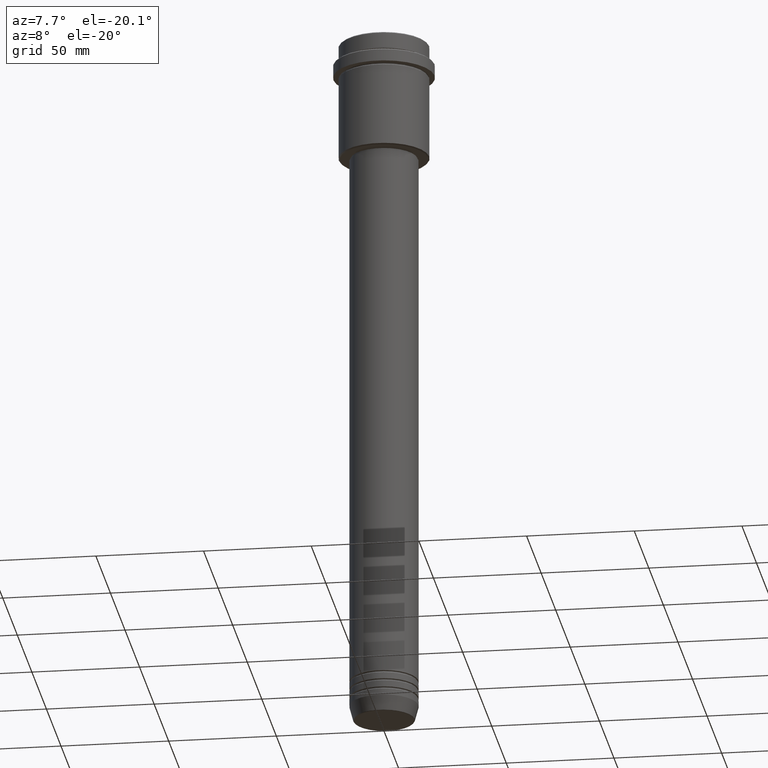
[diagram: clean part render]
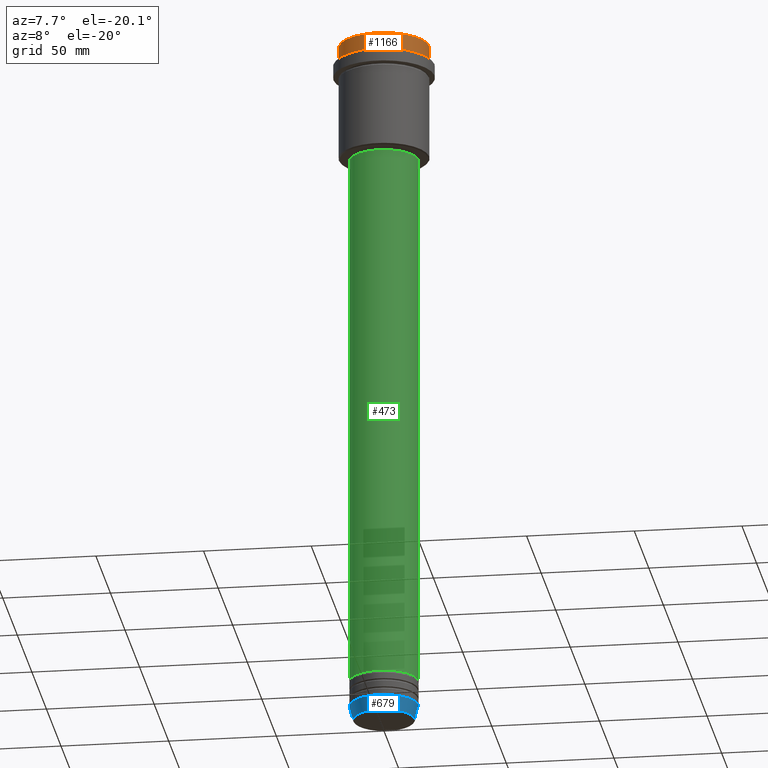
[diagram: same view with three faces highlighted in distinct colors, each labeled with its STEP entity id]
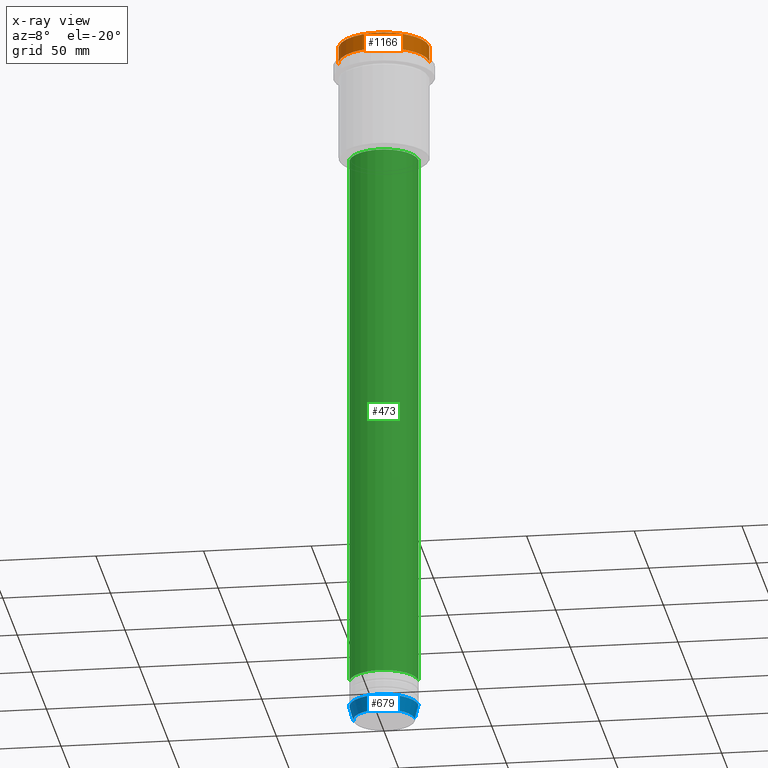
[diagram: x-ray of the same camera — body ghosted, the three highlighted faces saturated]
A machine part, auxiliary view with three faces highlighted in distinct colors.
The next image is the same camera in x-ray (body ghosted, the three faces saturated) — at least one of them is partly hidden behind the body in this view.
Their STEP definitions:

[orange] entity #1166 — the highlighted cylindrical surface (partial cylindrical patch) has radius 21 mm, axis along (-0, -0, 1).
#36 = DIRECTION ( 'NONE',  ( 1.000000000000000000, 0.000000000000000000, 0.000000000000000000 ) ) ;
#81 = DIRECTION ( 'NONE',  ( 1.000000000000000000, 0.000000000000000000, 0.000000000000000000 ) ) ;
#92 = CARTESIAN_POINT ( 'NONE',  ( 20.99999999999999645, 0.000000000000000000, -0.5000000000000350830 ) ) ;
#107 = DIRECTION ( 'NONE',  ( -0.000000000000000000, -0.000000000000000000, 1.000000000000000000 ) ) ;
#117 = ORIENTED_EDGE ( 'NONE', *, *, #514, .T. ) ;
#133 = ORIENTED_EDGE ( 'NONE', *, *, #512, .T. ) ;
#181 = DIRECTION ( 'NONE',  ( 0.000000000000000000, 0.000000000000000000, -1.000000000000000000 ) ) ;
#223 = CARTESIAN_POINT ( 'NONE',  ( 0.000000000000000000, 0.000000000000000000, 0.000000000000000000 ) ) ;
#255 = AXIS2_PLACEMENT_3D ( 'NONE', #449, #997, #893 ) ;
#260 = VECTOR ( 'NONE', #1262, 1000.000000000000000 ) ;
#316 = VERTEX_POINT ( 'NONE', #92 ) ;
#342 = ORIENTED_EDGE ( 'NONE', *, *, #1391, .F. ) ;
#369 = EDGE_CURVE ( 'NONE', #316, #386, #854, .T. ) ;
#386 = VERTEX_POINT ( 'NONE', #511 ) ;
#420 = EDGE_LOOP ( 'NONE', ( #342, #133, #117, #895 ) ) ;
#449 = CARTESIAN_POINT ( 'NONE',  ( 0.000000000000000000, 0.000000000000000000, -7.999999999999998224 ) ) ;
#454 = LINE ( 'NONE', #935, #260 ) ;
#483 = AXIS2_PLACEMENT_3D ( 'NONE', #506, #181, #81 ) ;
#506 = CARTESIAN_POINT ( 'NONE',  ( 0.000000000000000000, 0.000000000000000000, -0.5000000000000350830 ) ) ;
#511 = CARTESIAN_POINT ( 'NONE',  ( -20.99999999999999645, 2.571758278209441267E-15, -0.5000000000000350830 ) ) ;
#512 = EDGE_CURVE ( 'NONE', #517, #712, #1405, .T. ) ;
#514 = EDGE_CURVE ( 'NONE', #712, #316, #868, .T. ) ;
#517 = VERTEX_POINT ( 'NONE', #886 ) ;
#712 = VERTEX_POINT ( 'NONE', #1031 ) ;
#769 = CARTESIAN_POINT ( 'NONE',  ( 20.99999999999999645, 0.000000000000000000, 0.000000000000000000 ) ) ;
#854 = CIRCLE ( 'NONE', #483, 20.99999999999999645 ) ;
#868 = LINE ( 'NONE', #769, #1199 ) ;
#886 = CARTESIAN_POINT ( 'NONE',  ( -20.99999999999999645, 2.571758278209441267E-15, -7.999999999999998224 ) ) ;
#893 = DIRECTION ( 'NONE',  ( 1.000000000000000000, 0.000000000000000000, 0.000000000000000000 ) ) ;
#895 = ORIENTED_EDGE ( 'NONE', *, *, #369, .T. ) ;
#935 = CARTESIAN_POINT ( 'NONE',  ( -20.99999999999999645, 2.571758278209441267E-15, 0.000000000000000000 ) ) ;
#957 = CYLINDRICAL_SURFACE ( 'NONE', #1066, 20.99999999999999645 ) ;
#997 = DIRECTION ( 'NONE',  ( -0.000000000000000000, -0.000000000000000000, 1.000000000000000000 ) ) ;
#1031 = CARTESIAN_POINT ( 'NONE',  ( 20.99999999999999645, 0.000000000000000000, -7.999999999999998224 ) ) ;
#1066 = AXIS2_PLACEMENT_3D ( 'NONE', #223, #1217, #36 ) ;
#1158 = FACE_OUTER_BOUND ( 'NONE', #420, .T. ) ;
#1166 = ADVANCED_FACE ( 'NONE', ( #1158 ), #957, .T. ) ;
#1199 = VECTOR ( 'NONE', #107, 1000.000000000000000 ) ;
#1217 = DIRECTION ( 'NONE',  ( -0.000000000000000000, -0.000000000000000000, 1.000000000000000000 ) ) ;
#1262 = DIRECTION ( 'NONE',  ( -0.000000000000000000, -0.000000000000000000, 1.000000000000000000 ) ) ;
#1391 = EDGE_CURVE ( 'NONE', #517, #386, #454, .T. ) ;
#1405 = CIRCLE ( 'NONE', #255, 20.99999999999999645 ) ;

[blue] entity #679 — the highlighted conical surface has half-angle 15 deg.
#136 = FACE_OUTER_BOUND ( 'NONE', #470, .T. ) ;
#143 = CARTESIAN_POINT ( 'NONE',  ( -14.22365507213718772, 1.850665122131323337E-15, -329.6294095225512706 ) ) ;
#168 = CONICAL_SURFACE ( 'NONE', #1247, 16.00000000000000000, 0.2617993877991500740 ) ;
#209 = ORIENTED_EDGE ( 'NONE', *, *, #1319, .F. ) ;
#233 = CARTESIAN_POINT ( 'NONE',  ( 0.000000000000000000, 0.000000000000000000, -323.0000000000000000 ) ) ;
#249 = VERTEX_POINT ( 'NONE', #1015 ) ;
#256 = CARTESIAN_POINT ( 'NONE',  ( 14.22365507213718772, 0.000000000000000000, -329.6294095225512706 ) ) ;
#264 = DIRECTION ( 'NONE',  ( 1.000000000000000000, 0.000000000000000000, 0.000000000000000000 ) ) ;
#324 = DIRECTION ( 'NONE',  ( -0.2588190451025213501, 3.169619151431772337E-17, 0.9659258262890680902 ) ) ;
#355 = LINE ( 'NONE', #909, #925 ) ;
#356 = CARTESIAN_POINT ( 'NONE',  ( 0.000000000000000000, 0.000000000000000000, -323.0000000000000000 ) ) ;
#443 = LINE ( 'NONE', #861, #813 ) ;
#470 = EDGE_LOOP ( 'NONE', ( #862, #595, #827, #209 ) ) ;
#558 = DIRECTION ( 'NONE',  ( 1.000000000000000000, 0.000000000000000000, 0.000000000000000000 ) ) ;
#595 = ORIENTED_EDGE ( 'NONE', *, *, #1407, .T. ) ;
#616 = VERTEX_POINT ( 'NONE', #143 ) ;
#669 = DIRECTION ( 'NONE',  ( -0.000000000000000000, -0.000000000000000000, 1.000000000000000000 ) ) ;
#670 = CIRCLE ( 'NONE', #1295, 16.00000000000000000 ) ;
#673 = VERTEX_POINT ( 'NONE', #256 ) ;
#679 = ADVANCED_FACE ( 'NONE', ( #136 ), #168, .T. ) ;
#682 = DIRECTION ( 'NONE',  ( 0.2588190451025213501, 0.000000000000000000, 0.9659258262890680902 ) ) ;
#801 = DIRECTION ( 'NONE',  ( -0.000000000000000000, -0.000000000000000000, 1.000000000000000000 ) ) ;
#813 = VECTOR ( 'NONE', #324, 1000.000000000000000 ) ;
#827 = ORIENTED_EDGE ( 'NONE', *, *, #1207, .T. ) ;
#861 = CARTESIAN_POINT ( 'NONE',  ( -16.00000000000000000, 1.959434878635765131E-15, -323.0000000000000000 ) ) ;
#862 = ORIENTED_EDGE ( 'NONE', *, *, #932, .F. ) ;
#909 = CARTESIAN_POINT ( 'NONE',  ( 16.00000000000000000, 0.000000000000000000, -323.0000000000000000 ) ) ;
#918 = VERTEX_POINT ( 'NONE', #972 ) ;
#925 = VECTOR ( 'NONE', #682, 1000.000000000000000 ) ;
#932 = EDGE_CURVE ( 'NONE', #616, #249, #443, .T. ) ;
#947 = CIRCLE ( 'NONE', #1362, 14.22365507213718772 ) ;
#972 = CARTESIAN_POINT ( 'NONE',  ( 16.00000000000000000, 0.000000000000000000, -323.0000000000000000 ) ) ;
#1015 = CARTESIAN_POINT ( 'NONE',  ( -16.00000000000000000, 1.959434878635765131E-15, -323.0000000000000000 ) ) ;
#1050 = CARTESIAN_POINT ( 'NONE',  ( 0.000000000000000000, 0.000000000000000000, -329.6294095225512706 ) ) ;
#1144 = DIRECTION ( 'NONE',  ( -0.000000000000000000, -0.000000000000000000, 1.000000000000000000 ) ) ;
#1207 = EDGE_CURVE ( 'NONE', #673, #918, #355, .T. ) ;
#1247 = AXIS2_PLACEMENT_3D ( 'NONE', #356, #1144, #264 ) ;
#1295 = AXIS2_PLACEMENT_3D ( 'NONE', #233, #669, #558 ) ;
#1319 = EDGE_CURVE ( 'NONE', #249, #918, #670, .T. ) ;
#1348 = DIRECTION ( 'NONE',  ( 1.000000000000000000, 0.000000000000000000, 0.000000000000000000 ) ) ;
#1362 = AXIS2_PLACEMENT_3D ( 'NONE', #1050, #801, #1348 ) ;
#1407 = EDGE_CURVE ( 'NONE', #616, #673, #947, .T. ) ;

[green] entity #473 — the highlighted cylindrical surface (edge-blend (fillet) strip) has radius 16 mm, axis along (-0, -0, 1).
#5 = CARTESIAN_POINT ( 'NONE',  ( -16.00000000000000000, 1.959434878635765131E-15, 0.000000000000000000 ) ) ;
#66 = EDGE_CURVE ( 'NONE', #799, #493, #660, .T. ) ;
#140 = VECTOR ( 'NONE', #339, 1000.000000000000000 ) ;
#203 = DIRECTION ( 'NONE',  ( -0.000000000000000000, -0.000000000000000000, 1.000000000000000000 ) ) ;
#257 = AXIS2_PLACEMENT_3D ( 'NONE', #883, #1115, #1004 ) ;
#262 = VERTEX_POINT ( 'NONE', #1054 ) ;
#331 = CYLINDRICAL_SURFACE ( 'NONE', #343, 16.00000000000000000 ) ;
#339 = DIRECTION ( 'NONE',  ( -0.000000000000000000, -0.000000000000000000, 1.000000000000000000 ) ) ;
#343 = AXIS2_PLACEMENT_3D ( 'NONE', #1117, #791, #1208 ) ;
#409 = ORIENTED_EDGE ( 'NONE', *, *, #891, .T. ) ;
#418 = EDGE_LOOP ( 'NONE', ( #649, #409, #915, #1176 ) ) ;
#473 = ADVANCED_FACE ( 'NONE', ( #1223 ), #331, .T. ) ;
#490 = EDGE_CURVE ( 'NONE', #493, #1397, #592, .T. ) ;
#493 = VERTEX_POINT ( 'NONE', #1314 ) ;
#524 = CIRCLE ( 'NONE', #257, 16.00000000000000000 ) ;
#559 = CARTESIAN_POINT ( 'NONE',  ( 0.000000000000000000, 0.000000000000000000, -55.99999999999991473 ) ) ;
#592 = CIRCLE ( 'NONE', #832, 16.00000000000000355 ) ;
#636 = DIRECTION ( 'NONE',  ( 1.000000000000000000, 0.000000000000000000, 0.000000000000000000 ) ) ;
#649 = ORIENTED_EDGE ( 'NONE', *, *, #66, .F. ) ;
#660 = LINE ( 'NONE', #5, #140 ) ;
#698 = CARTESIAN_POINT ( 'NONE',  ( 16.00000000000000000, 0.000000000000000000, 0.000000000000000000 ) ) ;
#710 = CARTESIAN_POINT ( 'NONE',  ( 16.00000000000000355, 0.000000000000000000, -55.99999999999991473 ) ) ;
#788 = VECTOR ( 'NONE', #916, 1000.000000000000000 ) ;
#791 = DIRECTION ( 'NONE',  ( -0.000000000000000000, -0.000000000000000000, 1.000000000000000000 ) ) ;
#799 = VERTEX_POINT ( 'NONE', #853 ) ;
#832 = AXIS2_PLACEMENT_3D ( 'NONE', #559, #203, #636 ) ;
#853 = CARTESIAN_POINT ( 'NONE',  ( -16.00000000000000000, 1.959434878635765131E-15, -310.9999999999998863 ) ) ;
#883 = CARTESIAN_POINT ( 'NONE',  ( 0.000000000000000000, 0.000000000000000000, -310.9999999999998863 ) ) ;
#891 = EDGE_CURVE ( 'NONE', #799, #262, #524, .T. ) ;
#915 = ORIENTED_EDGE ( 'NONE', *, *, #1000, .T. ) ;
#916 = DIRECTION ( 'NONE',  ( -0.000000000000000000, -0.000000000000000000, 1.000000000000000000 ) ) ;
#1000 = EDGE_CURVE ( 'NONE', #262, #1397, #1341, .T. ) ;
#1004 = DIRECTION ( 'NONE',  ( 1.000000000000000000, 0.000000000000000000, 0.000000000000000000 ) ) ;
#1054 = CARTESIAN_POINT ( 'NONE',  ( 16.00000000000000000, 0.000000000000000000, -310.9999999999998863 ) ) ;
#1115 = DIRECTION ( 'NONE',  ( -0.000000000000000000, -0.000000000000000000, 1.000000000000000000 ) ) ;
#1117 = CARTESIAN_POINT ( 'NONE',  ( 0.000000000000000000, 0.000000000000000000, 0.000000000000000000 ) ) ;
#1176 = ORIENTED_EDGE ( 'NONE', *, *, #490, .F. ) ;
#1208 = DIRECTION ( 'NONE',  ( 1.000000000000000000, 0.000000000000000000, 0.000000000000000000 ) ) ;
#1223 = FACE_OUTER_BOUND ( 'NONE', #418, .T. ) ;
#1314 = CARTESIAN_POINT ( 'NONE',  ( -16.00000000000000355, 1.959434878635765526E-15, -55.99999999999991473 ) ) ;
#1341 = LINE ( 'NONE', #698, #788 ) ;
#1397 = VERTEX_POINT ( 'NONE', #710 ) ;